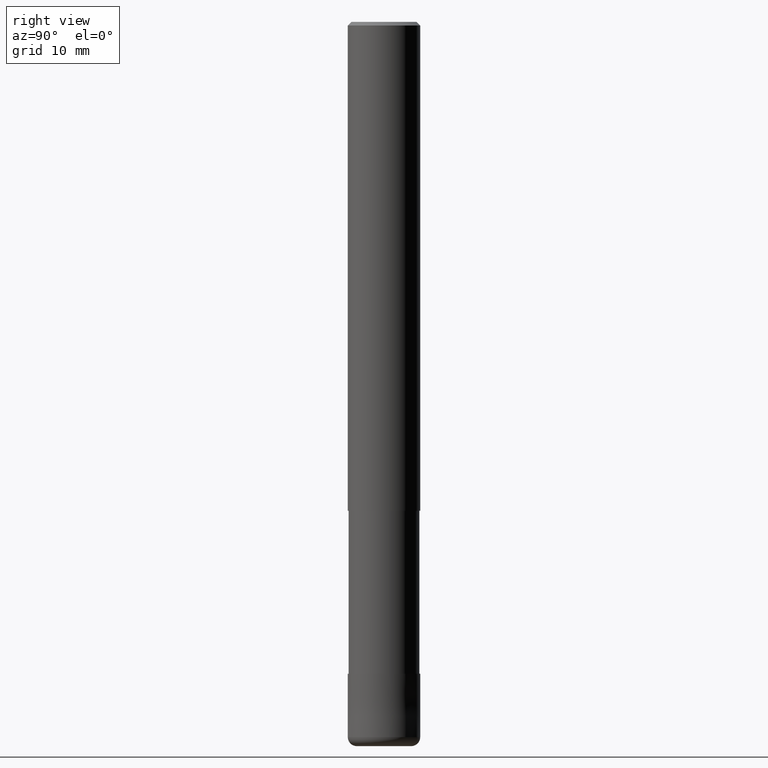
[diagram: clean part render]
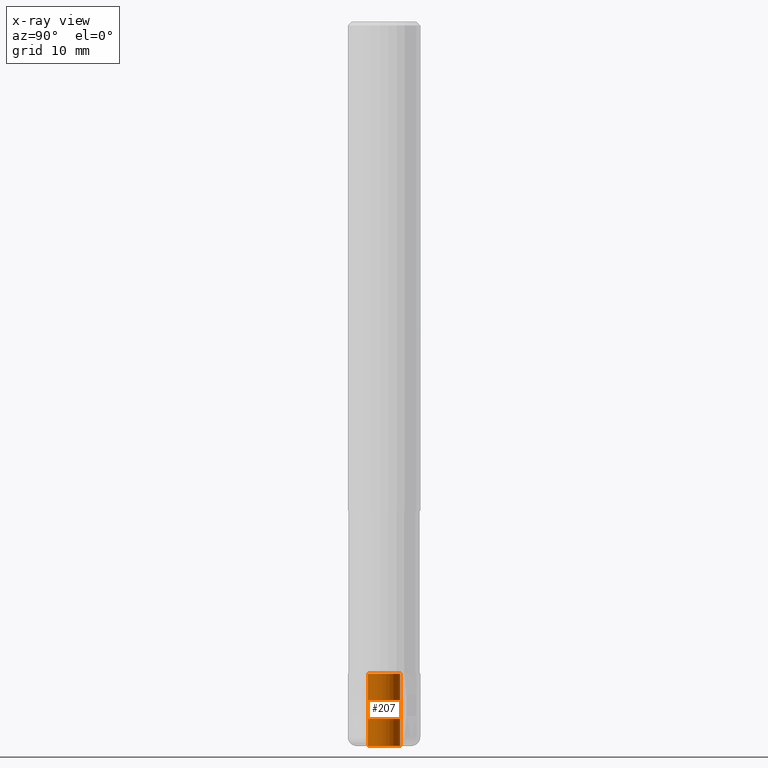
[diagram: x-ray — body ghosted, one internal face saturated and labeled with its STEP entity id]
A machine part, right view, then the same camera in x-ray: the body is ghosted and one INTERNAL B-rep face — a face not visible from any outside direction — is saturated and labeled: STEP entity #207.
In plain terms, the highlighted cylindrical surface (edge-blend (fillet) strip) has radius 1.8 mm, axis along (-0, -0, 1).
Its self-contained STEP definition (entity closure, byte-faithful):
#129=VERTEX_POINT('',#317);
#147=EDGE_CURVE('',#273,#129,#338,.T.);
#157=EDGE_CURVE('',#129,#241,#351,.T.);
#171=EDGE_CURVE('',#177,#273,#367,.T.);
#177=VERTEX_POINT('',#374);
#207=ADVANCED_FACE('',(#407),#408,.F.);
#241=VERTEX_POINT('',#447);
#245=EDGE_CURVE('',#177,#241,#451,.T.);
#273=VERTEX_POINT('',#482);
#317=CARTESIAN_POINT('',(2.20429143688028E-016,-1.8,-80.0));
#338=CIRCLE('',#554,1.8);
#351=LINE('',#570,#571);
#367=LINE('',#592,#593);
#374=CARTESIAN_POINT('',(0.0,1.8,-72.0));
#407=FACE_OUTER_BOUND('',#642,.T.);
#408=CYLINDRICAL_SURFACE('',#643,1.8);
#447=CARTESIAN_POINT('',(2.20429143688028E-016,-1.8,-72.0));
#451=CIRCLE('',#693,1.8);
#482=CARTESIAN_POINT('',(0.0,1.8,-80.0));
#554=AXIS2_PLACEMENT_3D('',#790,#791,#792);
#570=CARTESIAN_POINT('',(2.20429143688028E-016,-1.8,-76.0));
#571=VECTOR('',#815,1.0);
#592=CARTESIAN_POINT('',(-2.20429143688028E-016,1.8,-76.0));
#593=VECTOR('',#839,1.0);
#642=EDGE_LOOP('',(#884,#885,#886,#887));
#643=AXIS2_PLACEMENT_3D('',#888,#889,#890);
#693=AXIS2_PLACEMENT_3D('',#934,#935,#936);
#790=CARTESIAN_POINT('',(0.0,0.0,-80.0));
#791=DIRECTION('',(0.0,0.0,-1.0));
#792=DIRECTION('',(0.0,1.0,0.0));
#815=DIRECTION('',(0.0,-0.0,1.0));
#839=DIRECTION('',(0.0,-0.0,-1.0));
#884=ORIENTED_EDGE('',*,*,#171,.T.);
#885=ORIENTED_EDGE('',*,*,#147,.T.);
#886=ORIENTED_EDGE('',*,*,#157,.T.);
#887=ORIENTED_EDGE('',*,*,#245,.F.);
#888=CARTESIAN_POINT('',(0.0,0.0,-76.0));
#889=DIRECTION('',(-0.0,-0.0,1.0));
#890=DIRECTION('',(0.0,1.0,0.0));
#934=CARTESIAN_POINT('',(0.0,0.0,-72.0));
#935=DIRECTION('',(0.0,0.0,-1.0));
#936=DIRECTION('',(0.0,1.0,0.0));